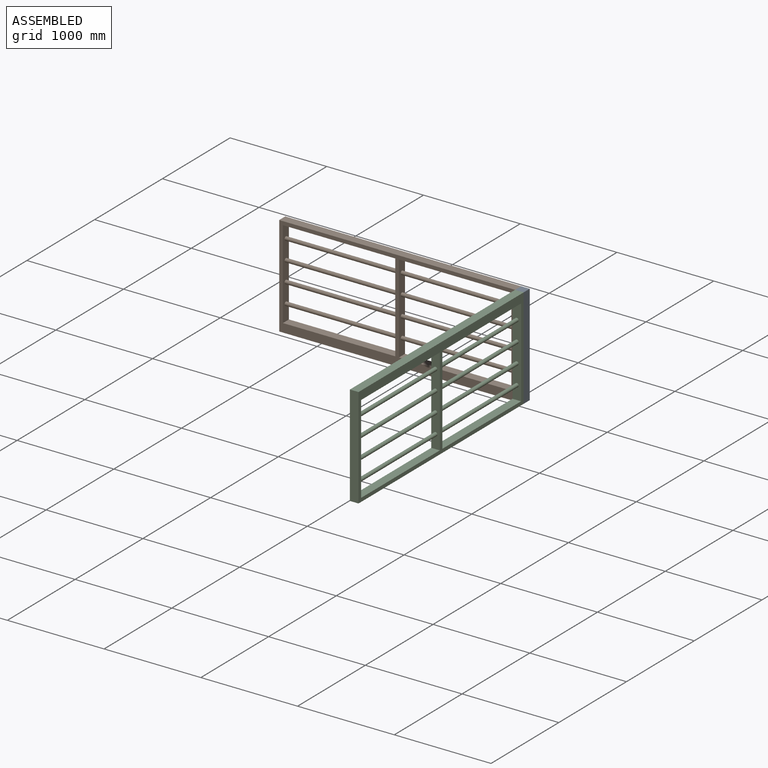
[diagram: assembled view]
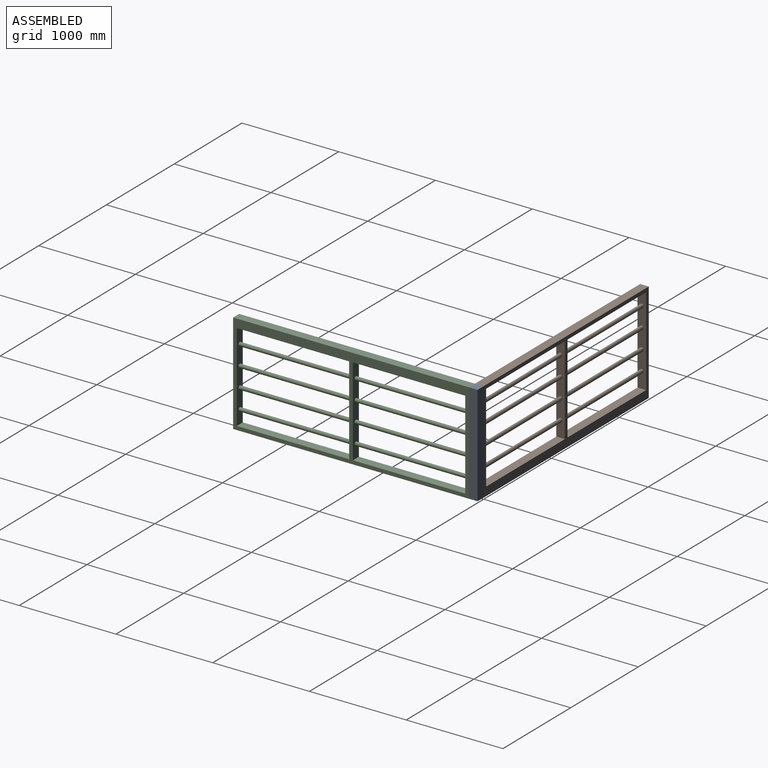
[diagram: assembled view, second angle]
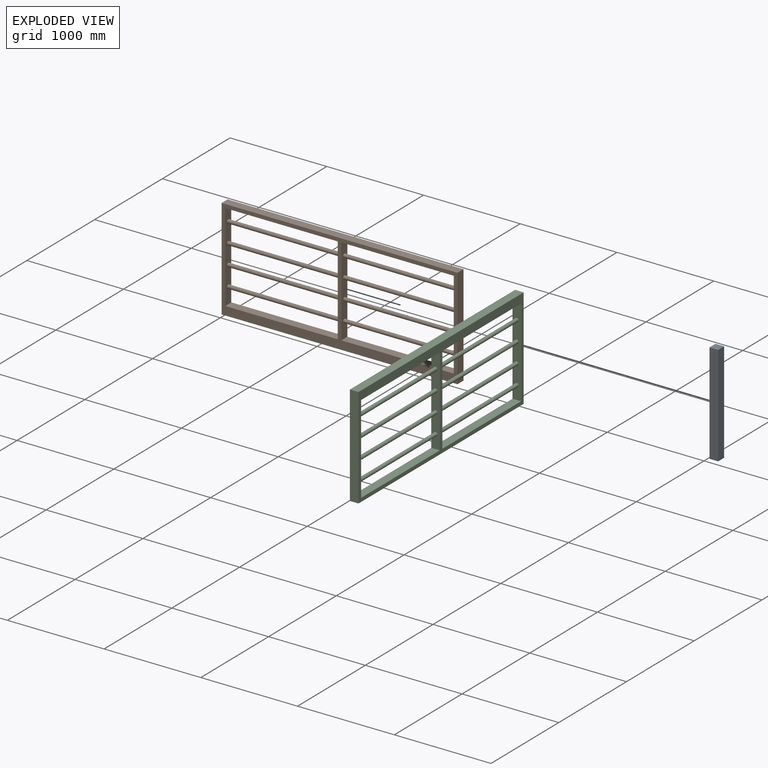
[diagram: exploded view]
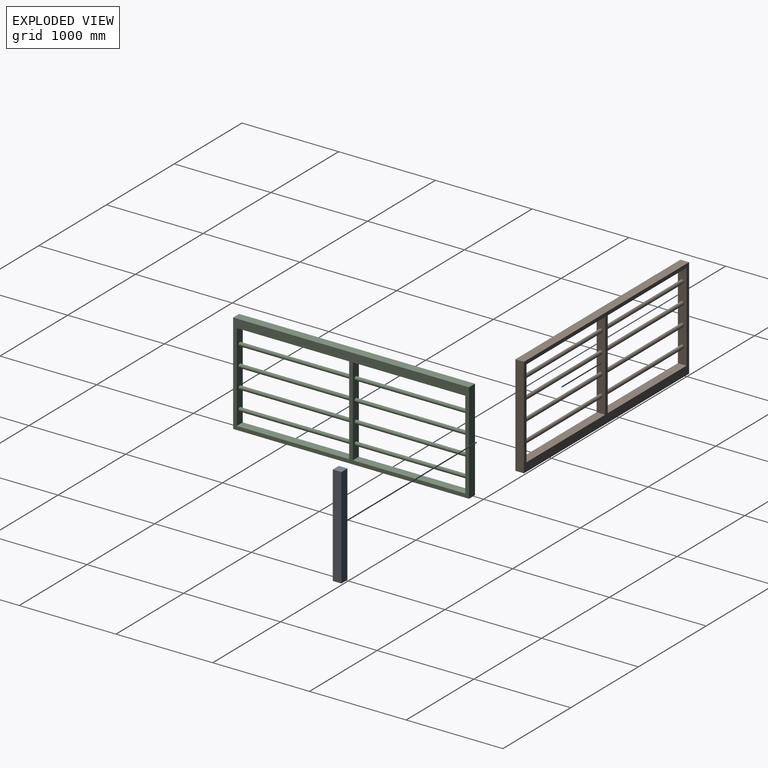
[diagram: exploded view, second angle]
ASSEMBLY  parts=3 mates=2
PART A: 6 faces, bbox 88.9x88.9x1041.4 mm
  f0: plane 1041.4x88.9mm, normal (0,1,0), area 92580.5mm2, adj f1,f3,f4,f5
  f1: plane 1041.4x88.9mm, normal (-1,0,0), area 92580.5mm2, adj f0,f2,f4,f5
  f2: plane 1041.4x88.9mm, normal (0,-1,0), area 92580.5mm2, adj f1,f3,f4,f5
  f3: plane 1041.4x88.9mm, normal (1,0,0), area 92580.5mm2, adj f0,f2,f4,f5
  f4: plane 88.9x88.9mm, normal (0,0,1), area 7903.2mm2, adj f0,f1,f2,f3
  f5: plane 88.9x88.9mm, normal (0,0,-1), area 7903.2mm2, adj f0,f1,f2,f3
PART B: 22 faces, bbox 2438.4x88.9x1041.4 mm
  f0: plane 1162.05x88.9mm, normal (0,0,1), area 103306.2mm2, adj f2,f4,f7,f9
  f1: plane 1162.05x88.9mm, normal (0,0,1), area 103306.2mm2, adj f2,f4,f8,f10
  f2: plane 2438.4x1041.4mm, normal (0,1,0), area 414192.7mm2, adj f0,f1,f3,f5,f6,f7,f8,f9
  f3: plane 1041.4x88.9mm, normal (-1,0,0), area 92580.5mm2, adj f2,f4,f6,f13
  f4: plane 2438.4x1041.4mm, normal (0,-1,0), area 414192.7mm2, adj f0,f1,f3,f5,f6,f7,f8,f9
  f5: plane 1041.4x88.9mm, normal (1,0,0), area 92580.5mm2, adj f2,f4,f6,f13
  f6: plane 2438.4x88.9mm, normal (0,0,-1), area 216773.8mm2, adj f2,f3,f4,f5
  f7: plane 914.4x88.9mm, normal (1,0,0), area 76729.8mm2, adj f0,f2,f4,f11,f15,f17,f19,f21
  f8: plane 914.4x88.9mm, normal (-1,0,0), area 76729.8mm2, adj f1,f2,f4,f12,f14,f16,f18,f20
  f9: plane 914.4x88.9mm, normal (-1,0,0), area 76729.8mm2, adj f0,f2,f4,f11,f15,f17,f19,f21
  f10: plane 914.4x88.9mm, normal (1,0,0), area 76729.8mm2, adj f1,f2,f4,f12,f14,f16,f18,f20
  f11: plane 1162.05x88.9mm, normal (0,0,-1), area 103306.2mm2, adj f2,f4,f7,f9
  f12: plane 1162.05x88.9mm, normal (0,0,-1), area 103306.2mm2, adj f2,f4,f8,f10
  f13: plane 2438.4x88.9mm, normal (0,0,1), area 216773.8mm2, adj f2,f3,f4,f5
  f14: cylinder r=19.05mm len=1162.05mm, axis (1,0,0), area 139091.2mm2, adj f8,f10
  f15: cylinder r=19.05mm len=1162.05mm, axis (1,0,0), area 139091.2mm2, adj f7,f9
  f16: cylinder r=19.05mm len=1162.05mm, axis (1,0,0), area 139091.2mm2, adj f8,f10
  f17: cylinder r=19.05mm len=1162.05mm, axis (1,0,0), area 139091.2mm2, adj f7,f9
  f18: cylinder r=19.05mm len=1162.05mm, axis (1,0,0), area 139091.2mm2, adj f8,f10
  f19: cylinder r=19.05mm len=1162.05mm, axis (1,0,0), area 139091.2mm2, adj f7,f9
  f20: cylinder r=19.05mm len=1162.05mm, axis (1,0,0), area 139091.2mm2, adj f8,f10
  f21: cylinder r=19.05mm len=1162.05mm, axis (1,0,0), area 139091.2mm2, adj f7,f9
PART C: same geometry as B
PLACE A rot(axis=(0.71,0.71,0),180deg) t=(141.85,-985.07,22.8)mm
PLACE B t=(-1149.39,-935.33,-1018.6)mm
PLACE C rot(axis=(0.71,0.71,0),180deg) t=(176.19,-2260.91,22.8)mm
MATE fastened C.f5 <-> A.f1  axis (0,1,0) through (118.33,-1037.64,-497.9)mm
MATE fastened A.f2 <-> B.f5  axis (-1,0,0) through (73.88,-993.19,-497.9)mm
